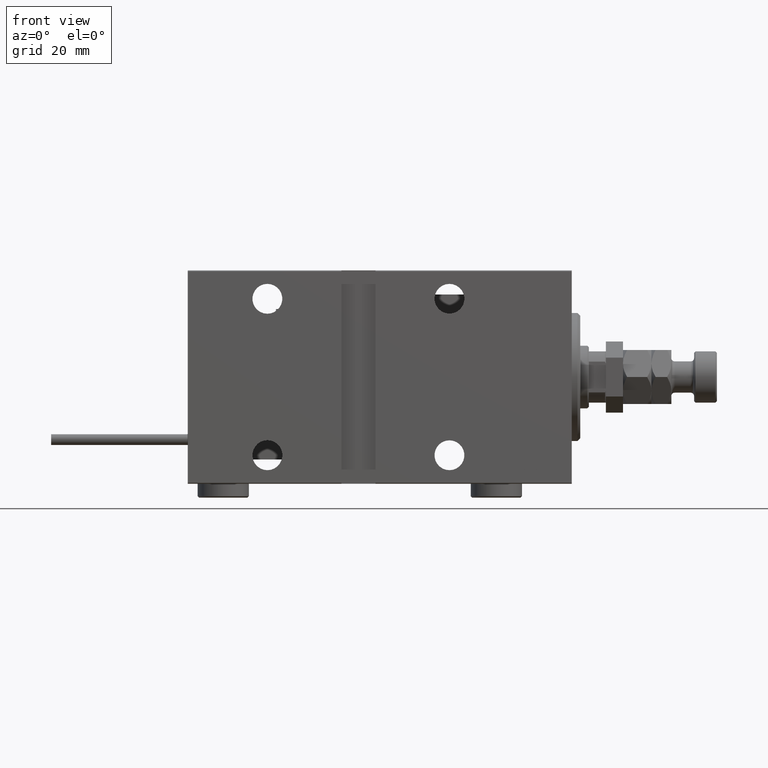
[diagram: clean part render]
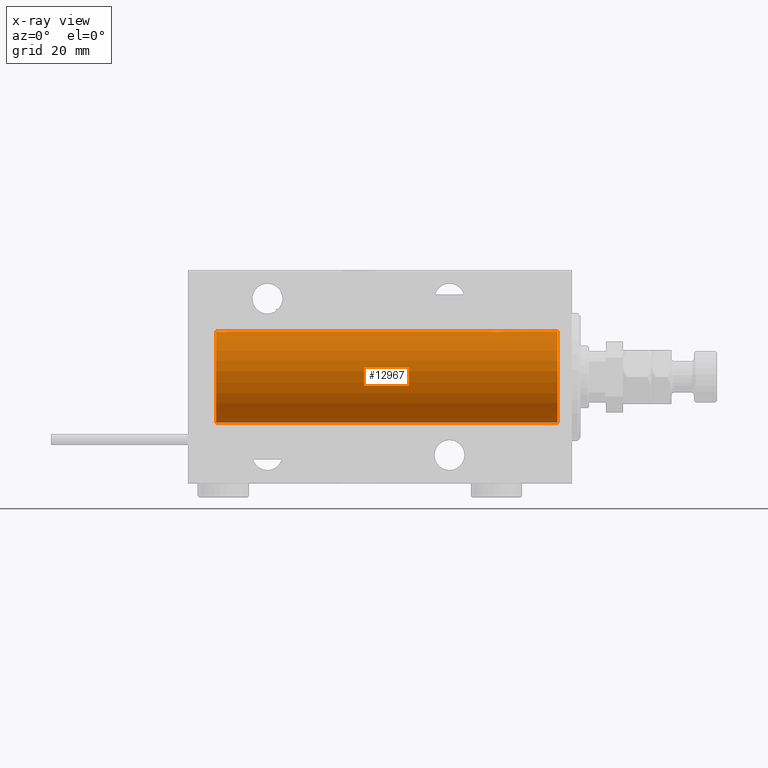
[diagram: x-ray — body ghosted, one internal face saturated and labeled with its STEP entity id]
A machine part, front view, then the same camera in x-ray: the body is ghosted and one INTERNAL B-rep face — a face not visible from any outside direction — is saturated and labeled: STEP entity #12967.
In plain terms, the highlighted cylindrical surface (partial cylindrical patch) has radius 16 mm, axis along (1, 0, -0).
Its self-contained STEP definition (entity closure, byte-faithful):
#368 = CARTESIAN_POINT ( 'NONE',  ( 125.0000000000000000, 0.000000000000000000, 16.00000000000000000 ) ) ;
#372 = DIRECTION ( 'NONE',  ( 0.000000000000000000, 0.000000000000000000, 1.000000000000000000 ) ) ;
#647 = CARTESIAN_POINT ( 'NONE',  ( 5.000000000000004441, 0.000000000000000000, 16.00000000000000000 ) ) ;
#2462 = ORIENTED_EDGE ( 'NONE', *, *, #23038, .T. ) ;
#2542 = CARTESIAN_POINT ( 'NONE',  ( 120.9926283968757303, 1.321075116345873601, 15.94564302722883653 ) ) ;
#2552 = CARTESIAN_POINT ( 'NONE',  ( 5.000000000000004441, 1.959434878635765131E-15, -16.00000000000000000 ) ) ;
#2772 = CARTESIAN_POINT ( 'NONE',  ( 28.39758870055591444, 0.6452446332038146437, 15.98744362947834574 ) ) ;
#3085 = CARTESIAN_POINT ( 'NONE',  ( 124.4870052400841445, 0.2623312429553332770, 15.99836091803360105 ) ) ;
#3350 = CARTESIAN_POINT ( 'NONE',  ( 122.3701469164950311, 2.000047931387136213, 15.87450182760079898 ) ) ;
#3525 = B_SPLINE_CURVE_WITH_KNOTS ( 'NONE', 3,
 ( #10845, #7363, #3085, #48025, #35195, #36249, #23674, #52567, #28223, #27166, #14853, #51508, #31963, #3350, #39206, #3612, #48557, #15924, #11903, #19676, #35997, #2542, #43760, #15656, #44546, #48293, #22876, #23407, #18872, #19139 ),
 .UNSPECIFIED., .F., .F.,
 ( 4, 2, 2, 2, 2, 2, 2, 2, 2, 2, 2, 2, 2, 2, 4 ),
 ( 3.488315472694475996E-18, 0.0003911894522871196605, 0.0007823789045742358516, 0.001173568356861352151, 0.001564757809148468234, 0.002347136713722699532, 0.003129515618296931263, 0.003520705070584047563, 0.003911894522871163862, 0.004303083975158279728, 0.004694273427445395594, 0.005085462879732512327, 0.005476652332019629060, 0.005867841784306744926, 0.006259031236593860792 ),
 .UNSPECIFIED. ) ;
#3560 = CARTESIAN_POINT ( 'NONE',  ( 124.5000000000000142, 3.590027768233731054E-15, 16.00000000000000000 ) ) ;
#3573 = CARTESIAN_POINT ( 'NONE',  ( 24.49999999999999289, 0.1305944228192297274, 15.99999999999999645 ) ) ;
#3612 = CARTESIAN_POINT ( 'NONE',  ( 121.9808690228988866, 1.935876924222072804, 15.88247600692093187 ) ) ;
#3819 = CARTESIAN_POINT ( 'NONE',  ( 28.29713414748220046, 0.8874076679346754037, 15.97583181162460697 ) ) ;
#4120 = EDGE_CURVE ( 'NONE', #12744, #40654, #21640, .T. ) ;
#4532 = CARTESIAN_POINT ( 'NONE',  ( 120.5000000000000142, -2.738767290746308786E-23, 16.00000000000000000 ) ) ;
#4751 = EDGE_CURVE ( 'NONE', #28392, #6672, #12221, .T. ) ;
#5305 = VERTEX_POINT ( 'NONE', #647 ) ;
#6135 = B_SPLINE_CURVE_WITH_KNOTS ( 'NONE', 3,
 ( #11861, #11337, #27654, #23632, #2772, #3819, #51736, #31922, #20151, #48778, #44244, #52788, #27920, #48248, #11599, #27387, #16145, #7320, #19095, #7585, #39963, #35417, #47712, #23098, #44506, #43716, #19902, #40489, #3573, #23899 ),
 .UNSPECIFIED., .F., .F.,
 ( 4, 2, 2, 2, 2, 2, 2, 2, 2, 2, 2, 2, 2, 2, 4 ),
 ( 1.745049934674283425E-18, 0.0003911894522871204737, 0.0007823789045742392126, 0.001173568356861357789, 0.001564757809148476691, 0.002347136713722706037, 0.003129515618296936034, 0.003520705070584051466, 0.003911894522871166464, 0.004303083975158282330, 0.004694273427445396461, 0.005085462879732512327, 0.005476652332019627326, 0.005867841784306743191, 0.006259031236593858190 ),
 .UNSPECIFIED. ) ;
#6203 = ORIENTED_EDGE ( 'NONE', *, *, #6670, .T. ) ;
#6670 = EDGE_CURVE ( 'NONE', #29908, #16587, #45019, .T. ) ;
#6672 = VERTEX_POINT ( 'NONE', #3560 ) ;
#7267 = CIRCLE ( 'NONE', #8875, 16.00000000000000000 ) ;
#7307 = DIRECTION ( 'NONE',  ( -1.000000000000000000, -0.000000000000000000, -0.000000000000000000 ) ) ;
#7320 = CARTESIAN_POINT ( 'NONE',  ( 25.61382242942729803, 1.797743958659254515, 15.89876304682112007 ) ) ;
#7363 = CARTESIAN_POINT ( 'NONE',  ( 124.5000000000000568, 0.1322838750249261675, 16.00000000000000355 ) ) ;
#7455 = CARTESIAN_POINT ( 'NONE',  ( 28.49999999999999645, -1.207828523974853969E-15, 16.00000000000000000 ) ) ;
#7569 = VERTEX_POINT ( 'NONE', #44239 ) ;
#7585 = CARTESIAN_POINT ( 'NONE',  ( 25.28032342557723311, 1.590393755196000347, 15.92092783521424337 ) ) ;
#8357 = DIRECTION ( 'NONE',  ( -1.000000000000000000, -0.000000000000000000, -0.000000000000000000 ) ) ;
#8391 = EDGE_LOOP ( 'NONE', ( #27514, #48758, #16850, #2462, #6203, #35565, #14159, #15797 ) ) ;
#8692 = CARTESIAN_POINT ( 'NONE',  ( 125.0000000000000000, 1.959434878635765131E-15, -16.00000000000000000 ) ) ;
#8875 = AXIS2_PLACEMENT_3D ( 'NONE', #20710, #9715, #372 ) ;
#9715 = DIRECTION ( 'NONE',  ( -1.000000000000000000, 0.000000000000000000, 0.000000000000000000 ) ) ;
#10845 = CARTESIAN_POINT ( 'NONE',  ( 124.5000000000000142, 3.590027768233731054E-15, 16.00000000000000000 ) ) ;
#11326 = AXIS2_PLACEMENT_3D ( 'NONE', #44230, #7307, #32169 ) ;
#11337 = CARTESIAN_POINT ( 'NONE',  ( 28.49999999999998579, 0.1322838750249257511, 16.00000000000000000 ) ) ;
#11599 = CARTESIAN_POINT ( 'NONE',  ( 26.23748416992101085, 1.987008272775788731, 15.87616016863256618 ) ) ;
#11861 = CARTESIAN_POINT ( 'NONE',  ( 28.49999999999999645, -1.207828523974853969E-15, 16.00000000000000000 ) ) ;
#11903 = CARTESIAN_POINT ( 'NONE',  ( 121.4968875296496407, 1.735145127817741662, 15.90580292899658410 ) ) ;
#12221 = LINE ( 'NONE', #45134, #14235 ) ;
#12744 = VERTEX_POINT ( 'NONE', #8692 ) ;
#12967 = ADVANCED_FACE ( 'NONE', ( #36452 ), #20399, .F. ) ;
#13341 = DIRECTION ( 'NONE',  ( 0.000000000000000000, 0.000000000000000000, 1.000000000000000000 ) ) ;
#14159 = ORIENTED_EDGE ( 'NONE', *, *, #52783, .T. ) ;
#14235 = VECTOR ( 'NONE', #40335, 1000.000000000000000 ) ;
#14853 = CARTESIAN_POINT ( 'NONE',  ( 123.5065918155958542, 1.747750603376302614, 15.90457341008073477 ) ) ;
#15656 = CARTESIAN_POINT ( 'NONE',  ( 120.7651732932504984, 1.003662148334365289, 15.96885838080210362 ) ) ;
#15797 = ORIENTED_EDGE ( 'NONE', *, *, #20204, .T. ) ;
#15924 = CARTESIAN_POINT ( 'NONE',  ( 121.6138224294273158, 1.797743958659247854, 15.89876304682111652 ) ) ;
#16145 = CARTESIAN_POINT ( 'NONE',  ( 25.85613031966986952, 1.898058445420883311, 15.88709929148890510 ) ) ;
#16587 = VERTEX_POINT ( 'NONE', #7455 ) ;
#16850 = ORIENTED_EDGE ( 'NONE', *, *, #4751, .T. ) ;
#18710 = VECTOR ( 'NONE', #45466, 1000.000000000000000 ) ;
#18872 = CARTESIAN_POINT ( 'NONE',  ( 120.5000000000000426, 0.1305944228192297552, 16.00000000000000000 ) ) ;
#19095 = CARTESIAN_POINT ( 'NONE',  ( 25.49688752964961225, 1.735145127817741439, 15.90580292899658410 ) ) ;
#19139 = CARTESIAN_POINT ( 'NONE',  ( 120.5000000000000142, -2.738767290746308786E-23, 16.00000000000000000 ) ) ;
#19512 = EDGE_CURVE ( 'NONE', #28392, #12744, #7267, .T. ) ;
#19676 = CARTESIAN_POINT ( 'NONE',  ( 121.2803234255772225, 1.590393755196000125, 15.92092783521423627 ) ) ;
#19902 = CARTESIAN_POINT ( 'NONE',  ( 24.56430947073869930, 0.5198215460038717595, 15.99206840425678955 ) ) ;
#20151 = CARTESIAN_POINT ( 'NONE',  ( 28.00610712468246177, 1.322357532253821910, 15.94553003295878391 ) ) ;
#20204 = EDGE_CURVE ( 'NONE', #5305, #40654, #25127, .T. ) ;
#20399 = CYLINDRICAL_SURFACE ( 'NONE', #11326, 16.00000000000000000 ) ;
#20710 = CARTESIAN_POINT ( 'NONE',  ( 125.0000000000000000, 0.000000000000000000, 0.000000000000000000 ) ) ;
#21640 = LINE ( 'NONE', #29131, #18710 ) ;
#22876 = CARTESIAN_POINT ( 'NONE',  ( 120.5643094707387348, 0.5198215460038717595, 15.99206840425679310 ) ) ;
#23038 = EDGE_CURVE ( 'NONE', #6672, #29908, #3525, .T. ) ;
#23098 = CARTESIAN_POINT ( 'NONE',  ( 24.76517329325045225, 1.003662148334361959, 15.96885838080210007 ) ) ;
#23407 = CARTESIAN_POINT ( 'NONE',  ( 120.5130907516787602, 0.2632563459770823622, 15.99834873924246104 ) ) ;
#23632 = CARTESIAN_POINT ( 'NONE',  ( 28.43611326682063378, 0.5181437283162068086, 15.99211983514074298 ) ) ;
#23674 = CARTESIAN_POINT ( 'NONE',  ( 124.2356809849826220, 1.002241074716279989, 15.96895041604535770 ) ) ;
#23899 = CARTESIAN_POINT ( 'NONE',  ( 24.50000000000000000, -2.739635037742051899E-23, 16.00000000000000000 ) ) ;
#24445 = LINE ( 'NONE', #368, #43638 ) ;
#25127 = CIRCLE ( 'NONE', #46469, 16.00000000000000000 ) ;
#25776 = CARTESIAN_POINT ( 'NONE',  ( 125.0000000000000000, 0.000000000000000000, 16.00000000000000000 ) ) ;
#27166 = CARTESIAN_POINT ( 'NONE',  ( 123.7295611173978500, 1.598790766515140849, 15.92099550861381374 ) ) ;
#27387 = CARTESIAN_POINT ( 'NONE',  ( 25.98086902289887234, 1.935876924222074358, 15.88247600692093187 ) ) ;
#27514 = ORIENTED_EDGE ( 'NONE', *, *, #4120, .F. ) ;
#27654 = CARTESIAN_POINT ( 'NONE',  ( 28.48700524008413382, 0.2623312429553315561, 15.99836091803360105 ) ) ;
#27906 = CARTESIAN_POINT ( 'NONE',  ( 125.0000000000000000, 0.000000000000000000, 16.00000000000000000 ) ) ;
#27920 = CARTESIAN_POINT ( 'NONE',  ( 26.76191462762254858, 1.999903730784154066, 15.87451999516785861 ) ) ;
#28223 = CARTESIAN_POINT ( 'NONE',  ( 124.0061071246824866, 1.322357532253812806, 15.94553003295878391 ) ) ;
#28392 = VERTEX_POINT ( 'NONE', #25776 ) ;
#29131 = CARTESIAN_POINT ( 'NONE',  ( 125.0000000000000000, 1.959434878635765131E-15, -16.00000000000000000 ) ) ;
#29908 = VERTEX_POINT ( 'NONE', #4532 ) ;
#31922 = CARTESIAN_POINT ( 'NONE',  ( 28.09051504852099512, 1.219564485341767091, 15.95382484008323409 ) ) ;
#31963 = CARTESIAN_POINT ( 'NONE',  ( 122.7619146276225450, 1.999903730784150069, 15.87451999516785861 ) ) ;
#32169 = DIRECTION ( 'NONE',  ( 0.000000000000000000, 0.000000000000000000, 1.000000000000000000 ) ) ;
#33680 = CARTESIAN_POINT ( 'NONE',  ( 5.000000000000004441, 0.000000000000000000, 0.000000000000000000 ) ) ;
#35195 = CARTESIAN_POINT ( 'NONE',  ( 124.3975887005559429, 0.6452446332038145327, 15.98744362947834929 ) ) ;
#35417 = CARTESIAN_POINT ( 'NONE',  ( 24.99262839687570903, 1.321075116345881595, 15.94564302722883298 ) ) ;
#35565 = ORIENTED_EDGE ( 'NONE', *, *, #35946, .T. ) ;
#35946 = EDGE_CURVE ( 'NONE', #16587, #7569, #6135, .T. ) ;
#35997 = CARTESIAN_POINT ( 'NONE',  ( 121.1792417517106912, 1.507649250492121951, 15.92908549642226745 ) ) ;
#36249 = CARTESIAN_POINT ( 'NONE',  ( 124.2971341474822253, 0.8874076679346750707, 15.97583181162460697 ) ) ;
#36452 = FACE_OUTER_BOUND ( 'NONE', #8391, .T. ) ;
#39206 = CARTESIAN_POINT ( 'NONE',  ( 122.2374841699210180, 1.987008272775785622, 15.87616016863256618 ) ) ;
#39963 = CARTESIAN_POINT ( 'NONE',  ( 25.17924175171067702, 1.507649250492130388, 15.92908549642226745 ) ) ;
#40335 = DIRECTION ( 'NONE',  ( -1.000000000000000000, -0.000000000000000000, -0.000000000000000000 ) ) ;
#40489 = CARTESIAN_POINT ( 'NONE',  ( 24.51309075167874596, 0.2632563459770819736, 15.99834873924246459 ) ) ;
#40654 = VERTEX_POINT ( 'NONE', #2552 ) ;
#41569 = DIRECTION ( 'NONE',  ( -1.000000000000000000, -0.000000000000000000, -0.000000000000000000 ) ) ;
#41959 = VECTOR ( 'NONE', #8357, 1000.000000000000000 ) ;
#43638 = VECTOR ( 'NONE', #41569, 1000.000000000000000 ) ;
#43716 = CARTESIAN_POINT ( 'NONE',  ( 24.60216273501104567, 0.6445079780200539954, 15.98747331501412461 ) ) ;
#43760 = CARTESIAN_POINT ( 'NONE',  ( 120.9099847189987855, 1.220169175415117158, 15.95377581882983975 ) ) ;
#44230 = CARTESIAN_POINT ( 'NONE',  ( 125.0000000000000000, 0.000000000000000000, 0.000000000000000000 ) ) ;
#44239 = CARTESIAN_POINT ( 'NONE',  ( 24.50000000000000000, -2.739635037742051899E-23, 16.00000000000000000 ) ) ;
#44244 = CARTESIAN_POINT ( 'NONE',  ( 27.50659181559580446, 1.747750603376297729, 15.90457341008072056 ) ) ;
#44506 = CARTESIAN_POINT ( 'NONE',  ( 24.70250071394960045, 0.8866640484200088990, 15.97587307151817448 ) ) ;
#44546 = CARTESIAN_POINT ( 'NONE',  ( 120.7025007139496040, 0.8866640484200094541, 15.97587307151818159 ) ) ;
#45019 = LINE ( 'NONE', #27906, #41959 ) ;
#45134 = CARTESIAN_POINT ( 'NONE',  ( 125.0000000000000000, 0.000000000000000000, 16.00000000000000000 ) ) ;
#45466 = DIRECTION ( 'NONE',  ( -1.000000000000000000, -0.000000000000000000, -0.000000000000000000 ) ) ;
#46469 = AXIS2_PLACEMENT_3D ( 'NONE', #33680, #50003, #13341 ) ;
#47712 = CARTESIAN_POINT ( 'NONE',  ( 24.90998471899876066, 1.220169175415113827, 15.95377581882983442 ) ) ;
#48025 = CARTESIAN_POINT ( 'NONE',  ( 124.4361132668206551, 0.5181437283162084739, 15.99211983514075008 ) ) ;
#48248 = CARTESIAN_POINT ( 'NONE',  ( 26.37014691649501685, 2.000047931387139322, 15.87450182760079187 ) ) ;
#48293 = CARTESIAN_POINT ( 'NONE',  ( 120.6021627350110634, 0.6445079780200545505, 15.98747331501412461 ) ) ;
#48557 = CARTESIAN_POINT ( 'NONE',  ( 121.8561303196698589, 1.898058445420877982, 15.88709929148890154 ) ) ;
#48758 = ORIENTED_EDGE ( 'NONE', *, *, #19512, .F. ) ;
#48778 = CARTESIAN_POINT ( 'NONE',  ( 27.72956111739783580, 1.598790766515148620, 15.92099550861380131 ) ) ;
#50003 = DIRECTION ( 'NONE',  ( -1.000000000000000000, 0.000000000000000000, 0.000000000000000000 ) ) ;
#51508 = CARTESIAN_POINT ( 'NONE',  ( 123.0253175645940047, 1.947280337074161150, 15.88137861827787489 ) ) ;
#51736 = CARTESIAN_POINT ( 'NONE',  ( 28.23568098498261492, 1.002241074716280655, 15.96895041604536480 ) ) ;
#52567 = CARTESIAN_POINT ( 'NONE',  ( 124.0905150485210129, 1.219564485341765758, 15.95382484008322344 ) ) ;
#52783 = EDGE_CURVE ( 'NONE', #7569, #5305, #24445, .T. ) ;
#52788 = CARTESIAN_POINT ( 'NONE',  ( 27.02531756459403667, 1.947280337074160927, 15.88137861827786779 ) ) ;